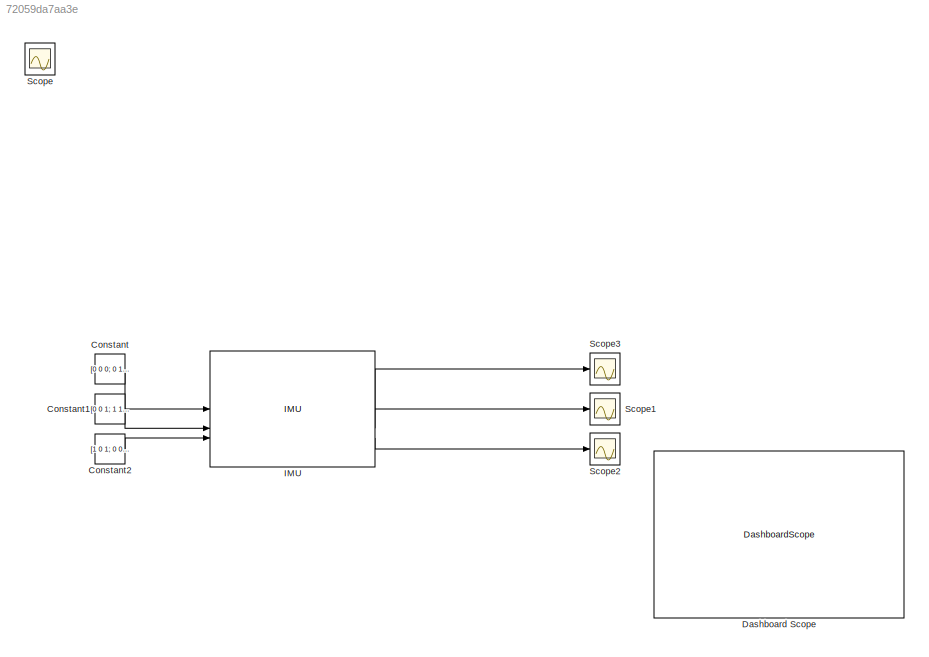
MODEL slx_72059da7aa3e
KIND model
CONFIG AbsTol = auto
CONFIG EnableMultiTasking = off
CONFIG FixedStep = auto
CONFIG MaxStep = auto
CONFIG MinStep = auto
CONFIG RelTol = 1e-3
CONFIG SampleTimeConstraint = Unconstrained
CONFIG SolverName = VariableStepAuto
CONFIG StartTime = 0.0
CONFIG StopTime = 10.0
BLOCK [Constant] Constant
  LockScale = on
  SampleTime = 0.01
  Value = [0 0 0; 0 1 0; 0 0 1]
  VectorParams1D = off
BLOCK [Constant] Constant1
  SampleTime = 0.01
  Value = [0 0 1; 1 1 0; 0 0 1]
  VectorParams1D = off
BLOCK [Constant] Constant2
  SampleTime = 0.01
  Value = [1 0 1; 0 0 1; 0 1 0]
  VectorParams1D = off
BLOCK [DashboardScope] Dashboard Scope
BLOCK [Reference] IMU  REF=mspsensorlib/IMU
  SourceBlock = mspsensorlib/IMU
  SourceType = fusion.simulink.imuSensor
BLOCK [Scope] Scope
  Floating = off
  GraphicalSettings = {"GraphicalSettings":{"LegacySettings":true,"Style":{"Style":{"PlotType":"Auto"}}}}
  IOType = viewer
  NumInputPorts = 1
  ScopeFrameLocation = window
  WasSavedAsWebScope = on
  WindowPosition = [1096.000000,366.000000,560.000000,420.000000,]
BLOCK [Scope] Scope1
  DataLoggingVariableName = ScopeData1
  Floating = off
  GraphicalSettings = {"GraphicalSettings":{"LegacySettings":true,"Style":{"Style":{"PlotType":"Auto"}}}}
  NumInputPorts = 1
  WasSavedAsWebScope = on
BLOCK [Scope] Scope2
  DataLoggingVariableName = ScopeData2
  Floating = off
  GraphicalSettings = {"GraphicalSettings":{"LegacySettings":true,"Style":{"Style":{"PlotType":"Auto"}}}}
  NumInputPorts = 1
  WasSavedAsWebScope = on
BLOCK [Scope] Scope3
  DataLoggingVariableName = ScopeData3
  Floating = off
  GraphicalSettings = {"GraphicalSettings":{"LegacySettings":true,"Style":{"Style":{"PlotType":"Auto"}}}}
  NumInputPorts = 1
  WasSavedAsWebScope = on
LINE Constant1:1 -> IMU:2
LINE Constant2:1 -> IMU:3
LINE Constant:1 -> IMU:1
LINE IMU:1 -> Scope3:1
LINE IMU:2 -> Scope1:1
LINE IMU:3 -> Scope2:1
